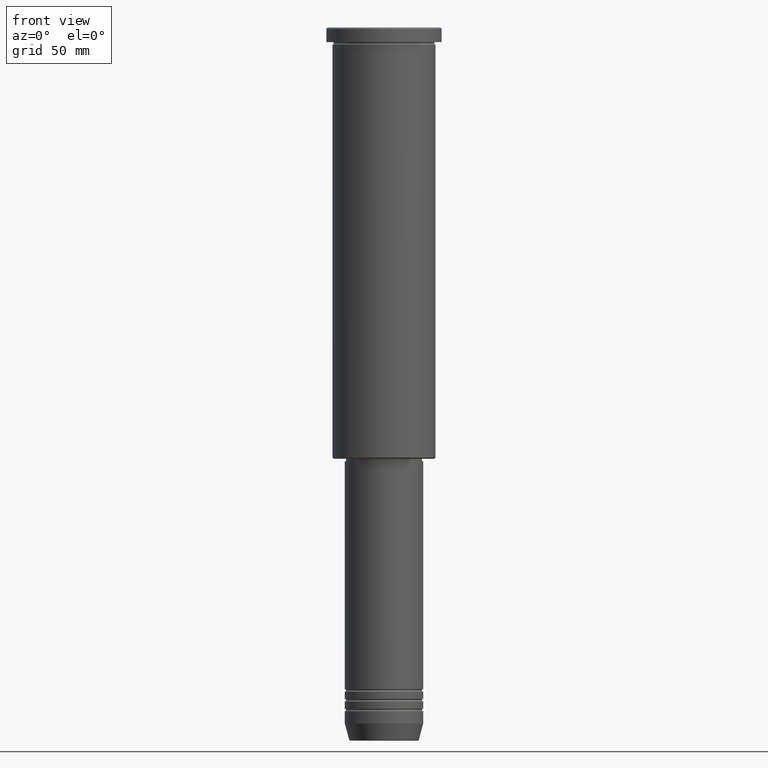
[diagram: clean part render]
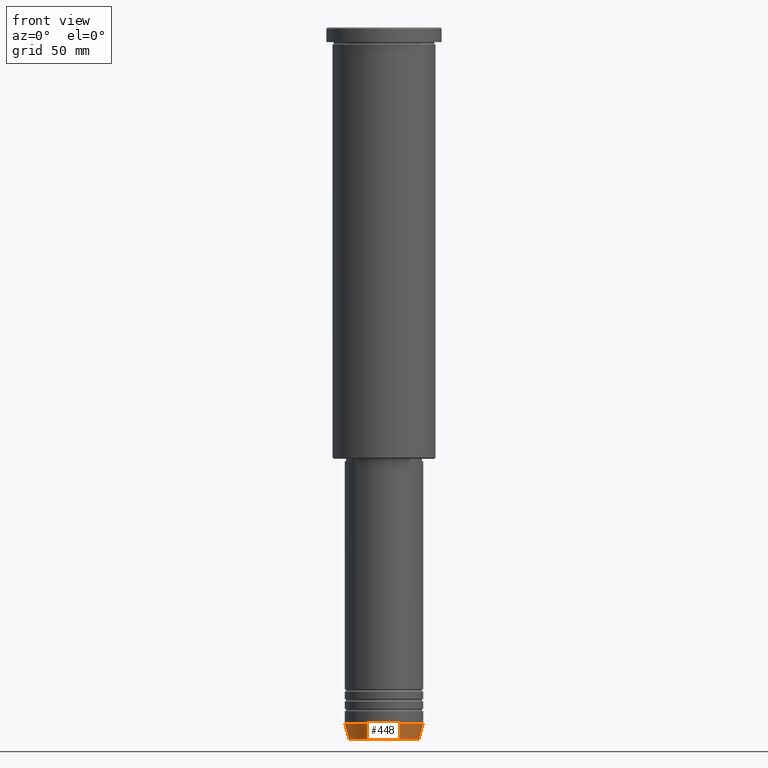
[diagram: same view with one face highlighted and labeled with its STEP entity id]
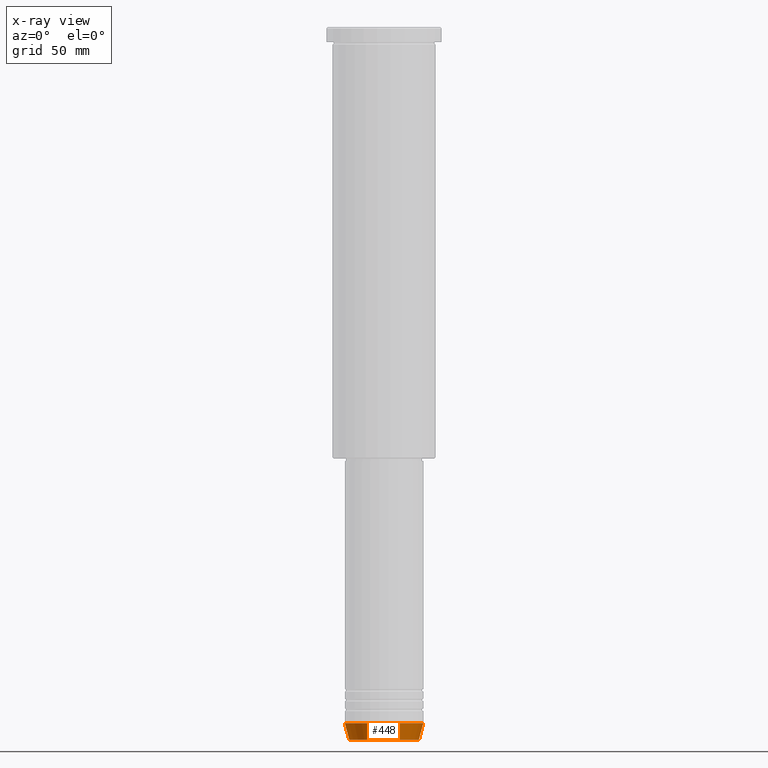
[diagram: x-ray of the same camera — body ghosted, the highlighted face saturated]
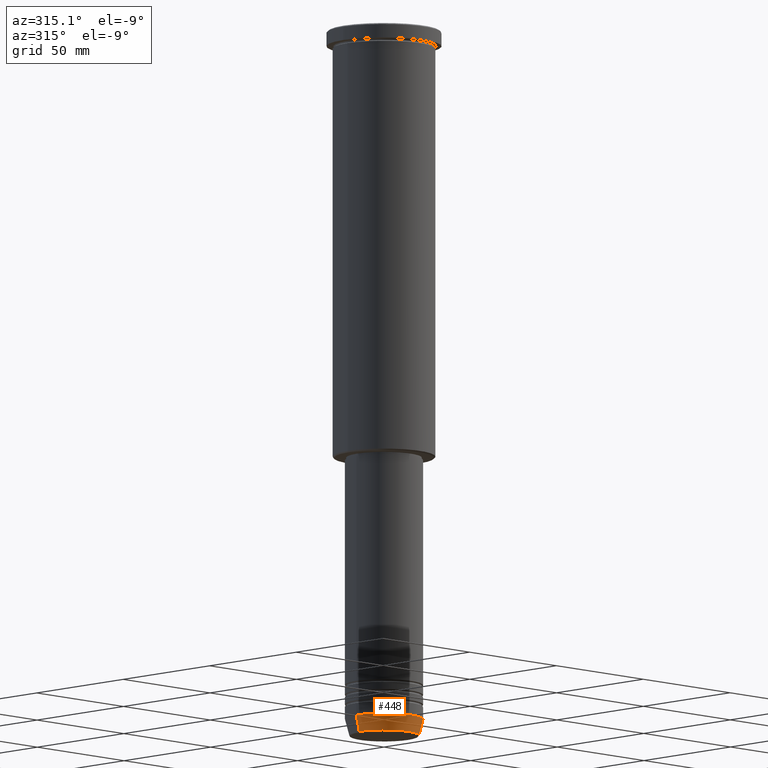
[diagram: same view with one face highlighted and labeled with its STEP entity id]
A machine part, front view. The second image highlights one B-rep face of the part: STEP entity #448.
The next image is the same camera in x-ray: the body ghosted, the highlighted face saturated — about 0% of this face is hidden behind the body in this view.
A second angle (auxiliary view) of the same face is appended — the face is thin or edge-on in the first view.
In plain terms, the highlighted conical surface has half-angle 15 deg.
Its self-contained STEP definition (entity closure, byte-faithful):
#6 = VERTEX_POINT ( 'NONE', #809 ) ;
#32 = VECTOR ( 'NONE', #1013, 1000.000000000000000 ) ;
#34 = EDGE_CURVE ( 'NONE', #110, #6, #737, .T. ) ;
#43 = EDGE_CURVE ( 'NONE', #110, #437, #936, .T. ) ;
#89 = CARTESIAN_POINT ( 'NONE',  ( -16.00000000000000000, 1.959434878635765131E-15, -284.0000000000000000 ) ) ;
#110 = VERTEX_POINT ( 'NONE', #635 ) ;
#135 = CARTESIAN_POINT ( 'NONE',  ( 16.00000000000000000, 0.000000000000000000, -284.0000000000000000 ) ) ;
#136 = ORIENTED_EDGE ( 'NONE', *, *, #43, .F. ) ;
#185 = AXIS2_PLACEMENT_3D ( 'NONE', #1178, #357, #384 ) ;
#194 = ORIENTED_EDGE ( 'NONE', *, *, #1020, .T. ) ;
#263 = DIRECTION ( 'NONE',  ( 1.000000000000000000, 0.000000000000000000, 0.000000000000000000 ) ) ;
#357 = DIRECTION ( 'NONE',  ( -0.000000000000000000, -0.000000000000000000, 1.000000000000000000 ) ) ;
#384 = DIRECTION ( 'NONE',  ( 1.000000000000000000, 0.000000000000000000, 0.000000000000000000 ) ) ;
#435 = ORIENTED_EDGE ( 'NONE', *, *, #34, .T. ) ;
#437 = VERTEX_POINT ( 'NONE', #795 ) ;
#448 = ADVANCED_FACE ( 'NONE', ( #1177 ), #965, .T. ) ;
#535 = DIRECTION ( 'NONE',  ( -0.000000000000000000, -0.000000000000000000, 1.000000000000000000 ) ) ;
#614 = DIRECTION ( 'NONE',  ( 1.000000000000000000, 0.000000000000000000, 0.000000000000000000 ) ) ;
#635 = CARTESIAN_POINT ( 'NONE',  ( -14.22365507213718772, 1.850665122131323337E-15, -290.6294095225512137 ) ) ;
#636 = AXIS2_PLACEMENT_3D ( 'NONE', #1113, #535, #263 ) ;
#693 = CARTESIAN_POINT ( 'NONE',  ( 0.000000000000000000, 0.000000000000000000, -284.0000000000000000 ) ) ;
#695 = EDGE_CURVE ( 'NONE', #437, #1153, #1056, .T. ) ;
#716 = CARTESIAN_POINT ( 'NONE',  ( 16.00000000000000000, 0.000000000000000000, -284.0000000000000000 ) ) ;
#737 = CIRCLE ( 'NONE', #185, 14.22365507213718772 ) ;
#778 = LINE ( 'NONE', #135, #1024 ) ;
#795 = CARTESIAN_POINT ( 'NONE',  ( -16.00000000000000000, 1.959434878635765131E-15, -284.0000000000000000 ) ) ;
#803 = EDGE_LOOP ( 'NONE', ( #136, #435, #194, #956 ) ) ;
#809 = CARTESIAN_POINT ( 'NONE',  ( 14.22365507213718772, 0.000000000000000000, -290.6294095225512137 ) ) ;
#894 = DIRECTION ( 'NONE',  ( 0.2588190451025213501, 0.000000000000000000, 0.9659258262890680902 ) ) ;
#930 = AXIS2_PLACEMENT_3D ( 'NONE', #693, #1152, #614 ) ;
#936 = LINE ( 'NONE', #89, #32 ) ;
#956 = ORIENTED_EDGE ( 'NONE', *, *, #695, .F. ) ;
#965 = CONICAL_SURFACE ( 'NONE', #930, 16.00000000000000000, 0.2617993877991500740 ) ;
#1013 = DIRECTION ( 'NONE',  ( -0.2588190451025213501, 3.169619151431772337E-17, 0.9659258262890680902 ) ) ;
#1020 = EDGE_CURVE ( 'NONE', #6, #1153, #778, .T. ) ;
#1024 = VECTOR ( 'NONE', #894, 1000.000000000000000 ) ;
#1056 = CIRCLE ( 'NONE', #636, 16.00000000000000000 ) ;
#1113 = CARTESIAN_POINT ( 'NONE',  ( 0.000000000000000000, 0.000000000000000000, -284.0000000000000000 ) ) ;
#1152 = DIRECTION ( 'NONE',  ( -0.000000000000000000, -0.000000000000000000, 1.000000000000000000 ) ) ;
#1153 = VERTEX_POINT ( 'NONE', #716 ) ;
#1177 = FACE_OUTER_BOUND ( 'NONE', #803, .T. ) ;
#1178 = CARTESIAN_POINT ( 'NONE',  ( 0.000000000000000000, 0.000000000000000000, -290.6294095225512137 ) ) ;